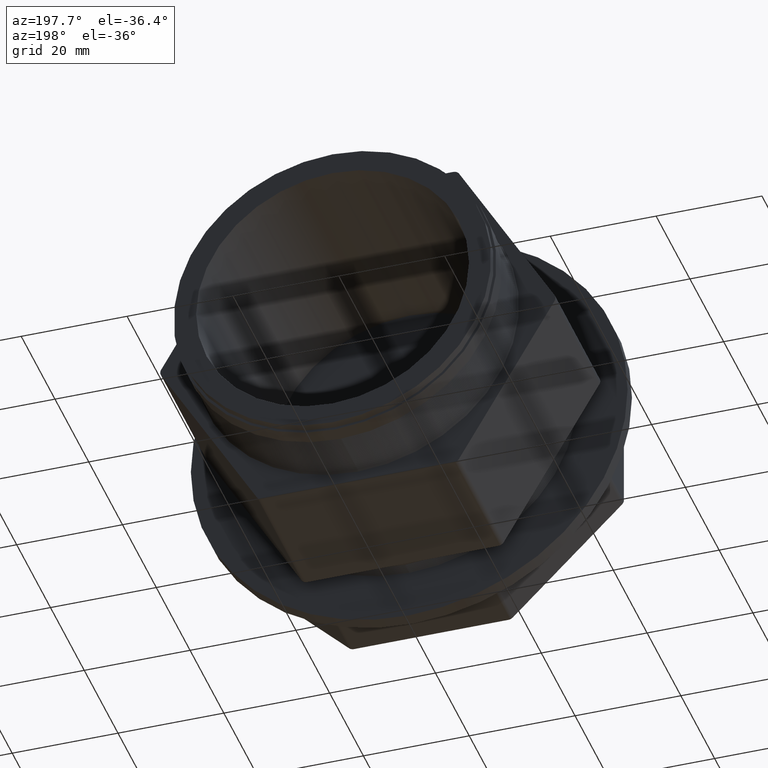
[diagram: clean part render]
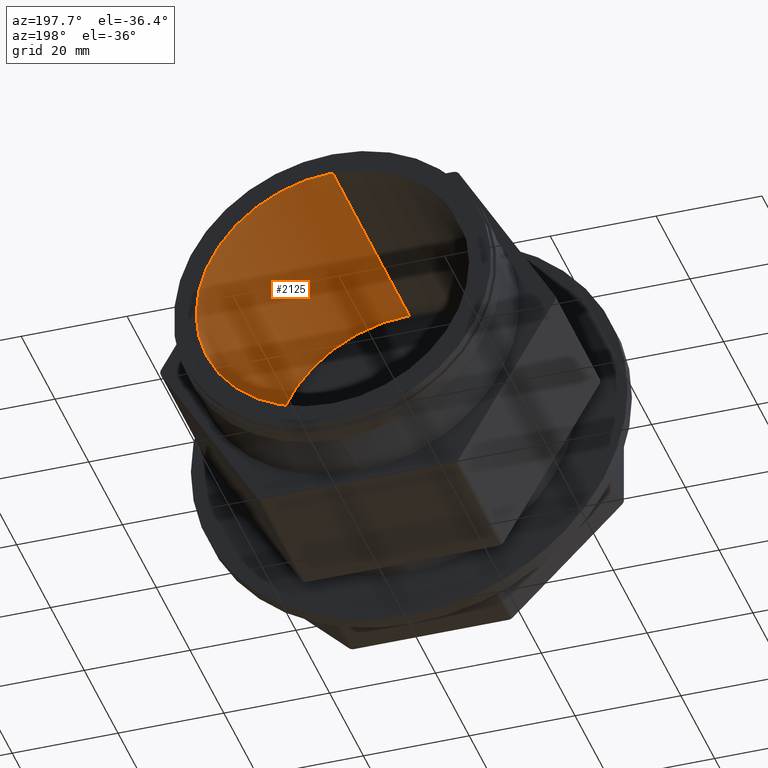
[diagram: same view with one face highlighted and labeled with its STEP entity id]
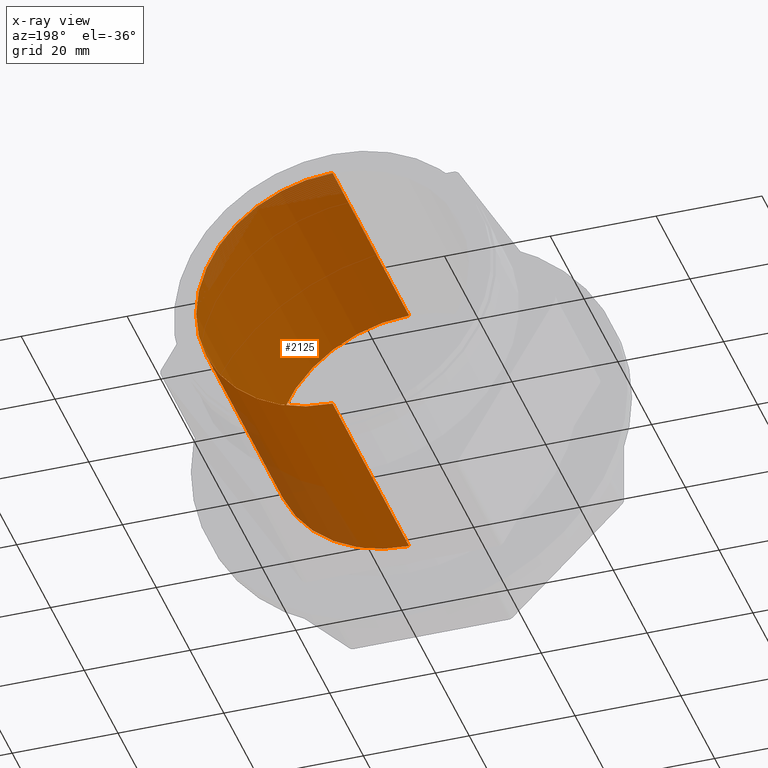
[diagram: x-ray of the same camera — body ghosted, the highlighted face saturated]
A machine part, auxiliary view. The second image highlights one B-rep face of the part: STEP entity #2125.
The next image is the same camera in x-ray: the body ghosted, the highlighted face saturated — about 8% of this face is hidden behind the body in this view.
In plain terms, the highlighted cylindrical surface (partial cylindrical patch) has radius 25.781 mm, axis along (-0, 1, -0).
Its self-contained STEP definition (entity closure, byte-faithful):
#153 = CARTESIAN_POINT ( 'NONE',  ( 1.243016501134563300E-016, 1.843561561718224600, -1.014999999999999900 ) ) ;
#154 = LINE ( 'NONE', #153, #179 ) ;
#177 = CARTESIAN_POINT ( 'NONE',  ( 1.243016501134563300E-016, 2.399999999999999900, -1.014999999999999900 ) ) ;
#178 = DIRECTION ( 'NONE',  ( -0.0000000000000000000, 1.000000000000000000, -0.0000000000000000000 ) ) ;
#179 = VECTOR ( 'NONE', #178, 39.37007874015748100 ) ;
#425 = DIRECTION ( 'NONE',  ( 0.0000000000000000000, 0.0000000000000000000, 1.000000000000000000 ) ) ;
#426 = DIRECTION ( 'NONE',  ( -0.0000000000000000000, 1.000000000000000000, -0.0000000000000000000 ) ) ;
#427 = CARTESIAN_POINT ( 'NONE',  ( 0.0000000000000000000, 0.6119999999999998800, 0.0000000000000000000 ) ) ;
#428 = AXIS2_PLACEMENT_3D ( 'NONE', #427, #426, #425 ) ;
#429 = CIRCLE ( 'NONE', #428, 1.014999999999999900 ) ;
#1092 = DIRECTION ( 'NONE',  ( -0.0000000000000000000, 1.000000000000000000, -0.0000000000000000000 ) ) ;
#1093 = CARTESIAN_POINT ( 'NONE',  ( 0.0000000000000000000, 2.399999999999999900, 0.0000000000000000000 ) ) ;
#1094 = AXIS2_PLACEMENT_3D ( 'NONE', #1093, #1092, #1107 ) ;
#1095 = CIRCLE ( 'NONE', #1094, 1.014999999999999900 ) ;
#1096 = FACE_OUTER_BOUND ( 'NONE', #2126, .T. ) ;
#1097 = CYLINDRICAL_SURFACE ( 'NONE', #1102, 1.014999999999999900 ) ;
#1102 = AXIS2_PLACEMENT_3D ( 'NONE', #1106, #1110, #1109 ) ;
#1106 = CARTESIAN_POINT ( 'NONE',  ( 0.0000000000000000000, 1.843561561718224600, 0.0000000000000000000 ) ) ;
#1107 = DIRECTION ( 'NONE',  ( 0.0000000000000000000, 0.0000000000000000000, 1.000000000000000000 ) ) ;
#1109 = DIRECTION ( 'NONE',  ( 0.0000000000000000000, 0.0000000000000000000, 1.000000000000000000 ) ) ;
#1110 = DIRECTION ( 'NONE',  ( -0.0000000000000000000, 1.000000000000000000, -0.0000000000000000000 ) ) ;
#1136 = CARTESIAN_POINT ( 'NONE',  ( 1.243016501134563300E-016, 0.6119999999999998800, -1.014999999999999900 ) ) ;
#1143 = DIRECTION ( 'NONE',  ( -0.0000000000000000000, 1.000000000000000000, -0.0000000000000000000 ) ) ;
#1144 = VECTOR ( 'NONE', #1143, 39.37007874015748100 ) ;
#1145 = CARTESIAN_POINT ( 'NONE',  ( 0.0000000000000000000, 1.843561561718224600, 1.014999999999999900 ) ) ;
#1146 = LINE ( 'NONE', #1145, #1144 ) ;
#1160 = CARTESIAN_POINT ( 'NONE',  ( 0.0000000000000000000, 2.399999999999999900, 1.014999999999999900 ) ) ;
#1161 = CARTESIAN_POINT ( 'NONE',  ( 0.0000000000000000000, 0.6119999999999998800, 1.014999999999999900 ) ) ;
#1304 = ORIENTED_EDGE ( 'NONE', *, *, #2253, .F. ) ;
#2077 = VERTEX_POINT ( 'NONE', #1136 ) ;
#2078 = VERTEX_POINT ( 'NONE', #1161 ) ;
#2080 = VERTEX_POINT ( 'NONE', #1160 ) ;
#2082 = EDGE_CURVE ( 'NONE', #2078, #2080, #1146, .T. ) ;
#2088 = ORIENTED_EDGE ( 'NONE', *, *, #2123, .T. ) ;
#2098 = ORIENTED_EDGE ( 'NONE', *, *, #2378, .F. ) ;
#2115 = ORIENTED_EDGE ( 'NONE', *, *, #2082, .T. ) ;
#2123 = EDGE_CURVE ( 'NONE', #2080, #2254, #1095, .T. ) ;
#2125 = ADVANCED_FACE ( 'NONE', ( #1096 ), #1097, .F. ) ;
#2126 = EDGE_LOOP ( 'NONE', ( #1304, #2098, #2115, #2088 ) ) ;
#2253 = EDGE_CURVE ( 'NONE', #2077, #2254, #154, .T. ) ;
#2254 = VERTEX_POINT ( 'NONE', #177 ) ;
#2378 = EDGE_CURVE ( 'NONE', #2078, #2077, #429, .T. ) ;